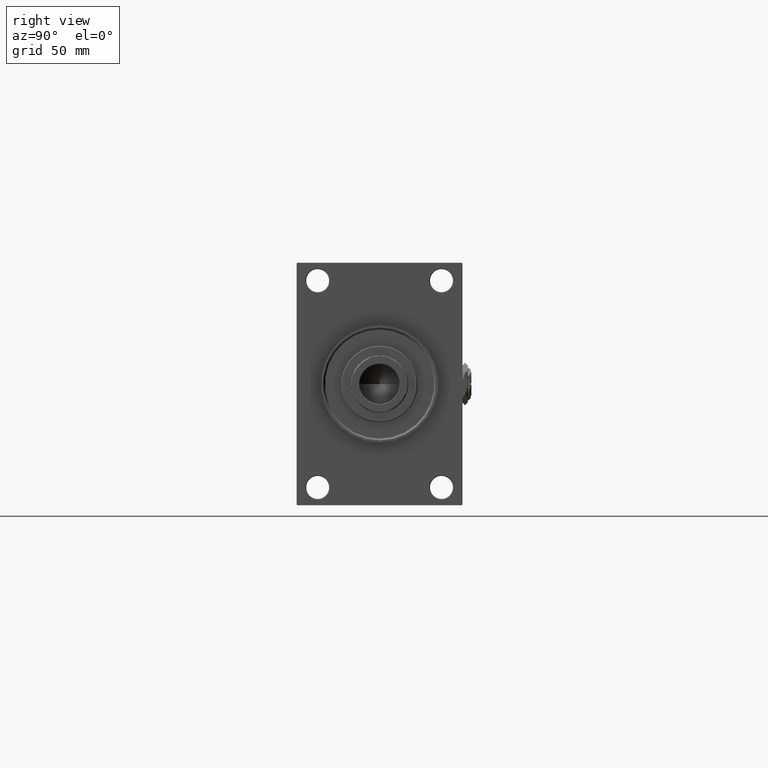
[diagram: clean part render]
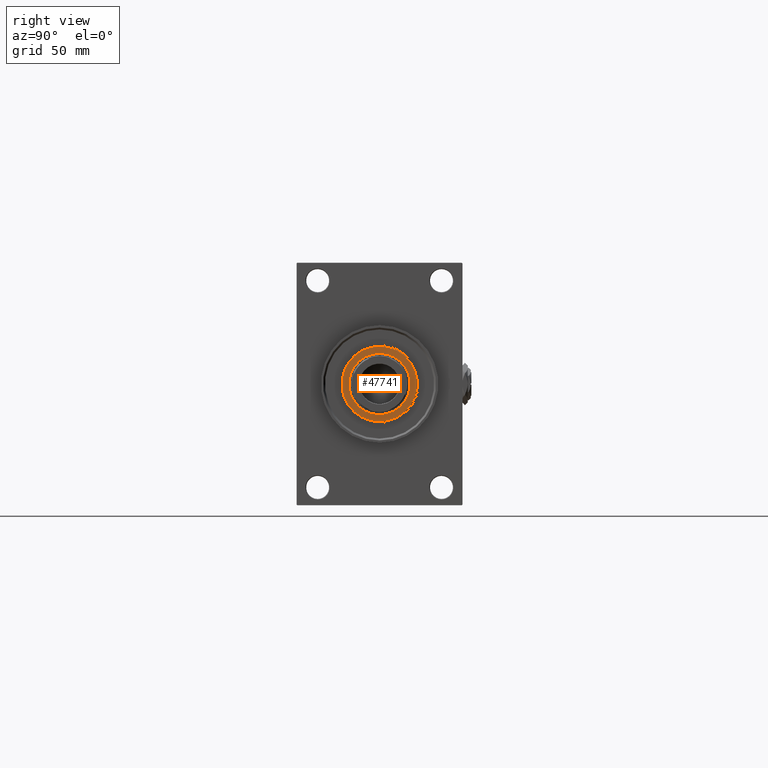
[diagram: same view with one face highlighted and labeled with its STEP entity id]
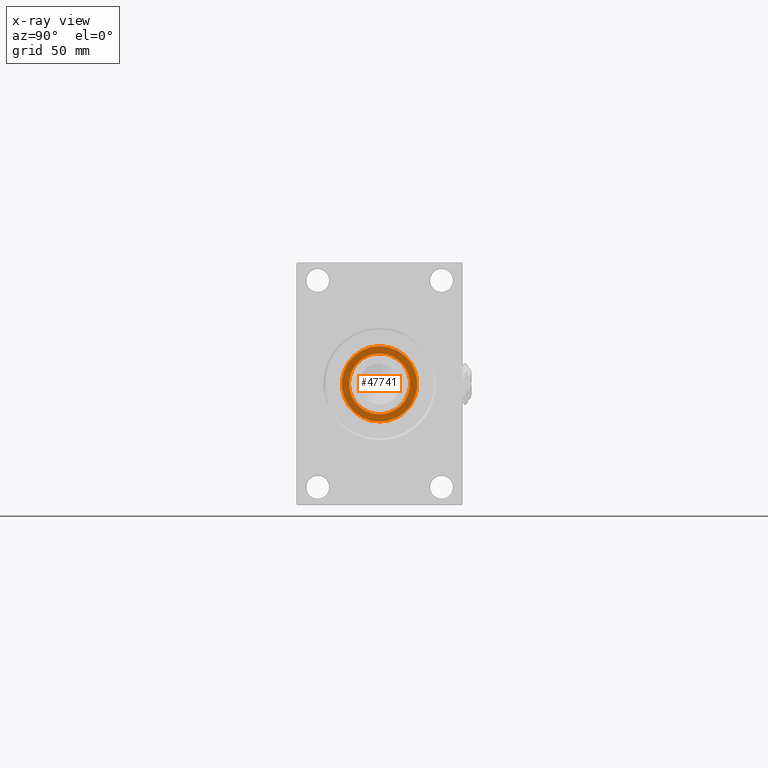
[diagram: x-ray of the same camera — body ghosted, the highlighted face saturated]
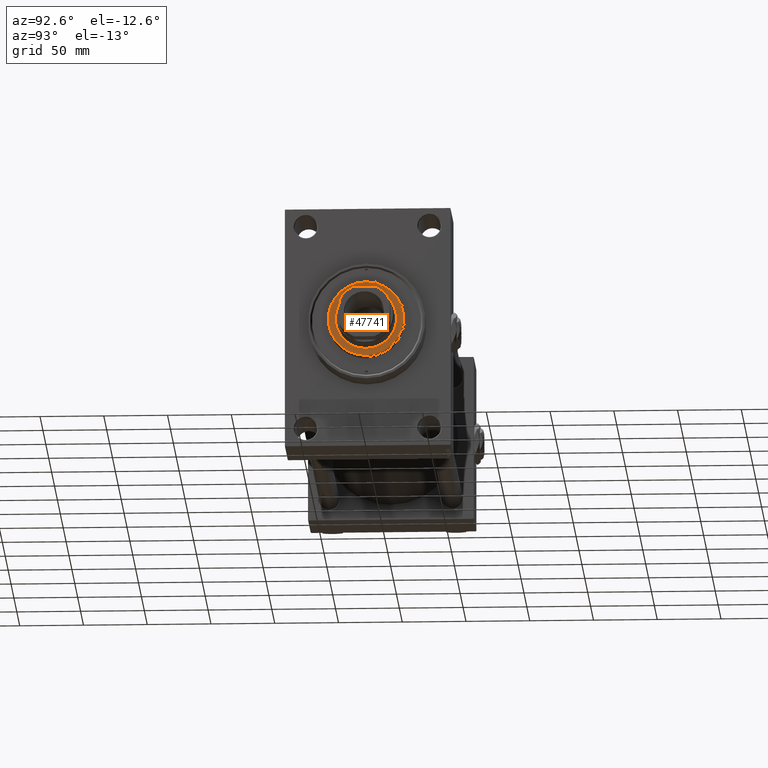
[diagram: same view with one face highlighted and labeled with its STEP entity id]
A machine part, right view. The second image highlights one B-rep face of the part: STEP entity #47741.
The next image is the same camera in x-ray: the body ghosted, the highlighted face saturated — about 0% of this face is hidden behind the body in this view.
A second angle (auxiliary view) of the same face is appended — the face is thin or edge-on in the first view.
In plain terms, the highlighted planar face has unit normal (1, -0, -0).
Its self-contained STEP definition (entity closure, byte-faithful):
#1200 = ORIENTED_EDGE ( 'NONE', *, *, #43619, .F. ) ;
#1866 = CARTESIAN_POINT ( 'NONE',  ( -29.50000000000000000, 0.000000000000000000, 52.25999999999999801 ) ) ;
#3275 = CIRCLE ( 'NONE', #15392, 24.00000000000000355 ) ;
#4564 = AXIS2_PLACEMENT_3D ( 'NONE', #24708, #17614, #5731 ) ;
#4785 = ORIENTED_EDGE ( 'NONE', *, *, #34736, .T. ) ;
#4917 = DIRECTION ( 'NONE',  ( 1.000000000000000000, 0.000000000000000000, -0.000000000000000000 ) ) ;
#5731 = DIRECTION ( 'NONE',  ( 1.000000000000000000, 0.000000000000000000, 0.000000000000000000 ) ) ;
#5825 = VERTEX_POINT ( 'NONE', #16169 ) ;
#6199 = EDGE_CURVE ( 'NONE', #47710, #5825, #39763, .T. ) ;
#8077 = AXIS2_PLACEMENT_3D ( 'NONE', #17927, #44238, #29816 ) ;
#9176 = FACE_OUTER_BOUND ( 'NONE', #42613, .T. ) ;
#11018 = CARTESIAN_POINT ( 'NONE',  ( 0.000000000000000000, 0.000000000000000000, 52.25999999999999801 ) ) ;
#12490 = CARTESIAN_POINT ( 'NONE',  ( 0.000000000000000000, 0.000000000000000000, 52.25999999999999801 ) ) ;
#15392 = AXIS2_PLACEMENT_3D ( 'NONE', #31649, #47075, #35697 ) ;
#16169 = CARTESIAN_POINT ( 'NONE',  ( 29.50000000000000000, 3.643324227463375391E-15, 52.25999999999999801 ) ) ;
#16283 = PLANE ( 'NONE',  #36395 ) ;
#17614 = DIRECTION ( 'NONE',  ( 0.000000000000000000, 0.000000000000000000, 1.000000000000000000 ) ) ;
#17927 = CARTESIAN_POINT ( 'NONE',  ( 0.000000000000000000, 0.000000000000000000, 52.25999999999999801 ) ) ;
#19151 = ORIENTED_EDGE ( 'NONE', *, *, #42888, .F. ) ;
#23122 = CIRCLE ( 'NONE', #4564, 29.50000000000000000 ) ;
#24621 = DIRECTION ( 'NONE',  ( 0.000000000000000000, 0.000000000000000000, 1.000000000000000000 ) ) ;
#24708 = CARTESIAN_POINT ( 'NONE',  ( 0.000000000000000000, 0.000000000000000000, 52.25999999999999801 ) ) ;
#27224 = ORIENTED_EDGE ( 'NONE', *, *, #6199, .T. ) ;
#29816 = DIRECTION ( 'NONE',  ( 1.000000000000000000, 0.000000000000000000, 0.000000000000000000 ) ) ;
#31649 = CARTESIAN_POINT ( 'NONE',  ( 0.000000000000000000, 0.000000000000000000, 52.25999999999999801 ) ) ;
#32391 = VERTEX_POINT ( 'NONE', #35389 ) ;
#33294 = DIRECTION ( 'NONE',  ( 0.000000000000000000, 0.000000000000000000, 1.000000000000000000 ) ) ;
#34736 = EDGE_CURVE ( 'NONE', #5825, #47710, #23122, .T. ) ;
#35389 = CARTESIAN_POINT ( 'NONE',  ( -24.00000000000000355, 2.939152317953648289E-15, 52.25999999999999801 ) ) ;
#35532 = FACE_BOUND ( 'NONE', #37985, .T. ) ;
#35697 = DIRECTION ( 'NONE',  ( 1.000000000000000000, 0.000000000000000000, 0.000000000000000000 ) ) ;
#36395 = AXIS2_PLACEMENT_3D ( 'NONE', #12490, #24621, #4917 ) ;
#37985 = EDGE_LOOP ( 'NONE', ( #1200, #19151 ) ) ;
#38931 = VERTEX_POINT ( 'NONE', #40930 ) ;
#39763 = CIRCLE ( 'NONE', #45383, 29.50000000000000000 ) ;
#40930 = CARTESIAN_POINT ( 'NONE',  ( 24.00000000000000355, 0.000000000000000000, 52.25999999999999801 ) ) ;
#41634 = DIRECTION ( 'NONE',  ( 1.000000000000000000, 0.000000000000000000, 0.000000000000000000 ) ) ;
#42613 = EDGE_LOOP ( 'NONE', ( #27224, #4785 ) ) ;
#42888 = EDGE_CURVE ( 'NONE', #32391, #38931, #44388, .T. ) ;
#43619 = EDGE_CURVE ( 'NONE', #38931, #32391, #3275, .T. ) ;
#44238 = DIRECTION ( 'NONE',  ( 0.000000000000000000, 0.000000000000000000, 1.000000000000000000 ) ) ;
#44388 = CIRCLE ( 'NONE', #8077, 24.00000000000000355 ) ;
#45383 = AXIS2_PLACEMENT_3D ( 'NONE', #11018, #33294, #41634 ) ;
#47075 = DIRECTION ( 'NONE',  ( 0.000000000000000000, 0.000000000000000000, 1.000000000000000000 ) ) ;
#47710 = VERTEX_POINT ( 'NONE', #1866 ) ;
#47741 = ADVANCED_FACE ( 'NONE', ( #35532, #9176 ), #16283, .T. ) ;